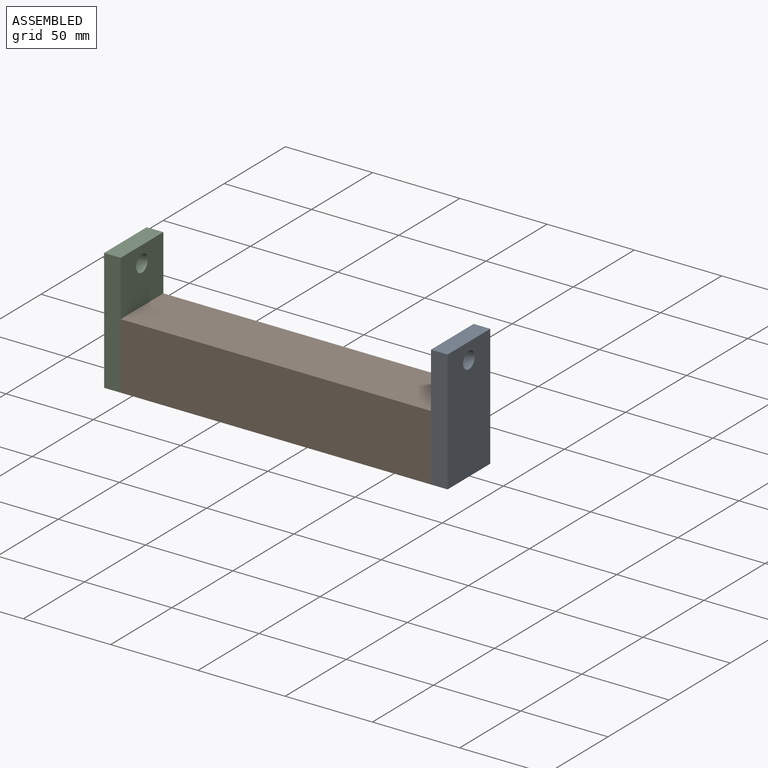
[diagram: assembled view]
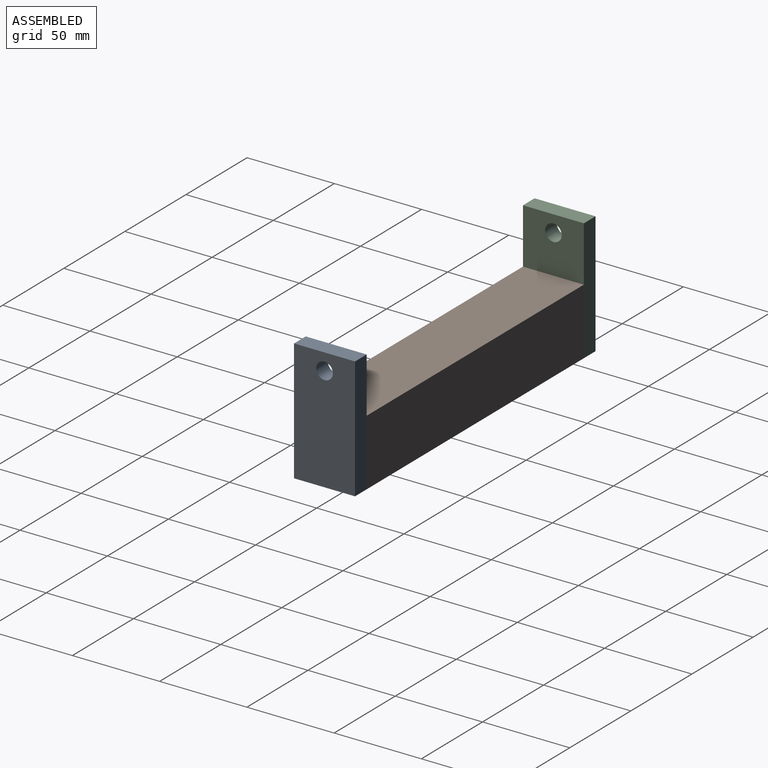
[diagram: assembled view, second angle]
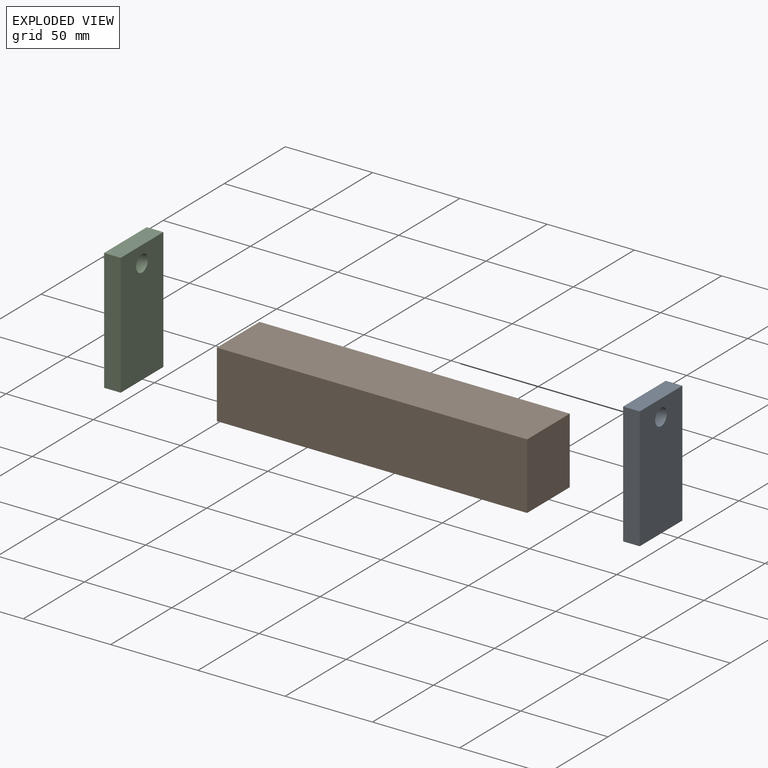
[diagram: exploded view]
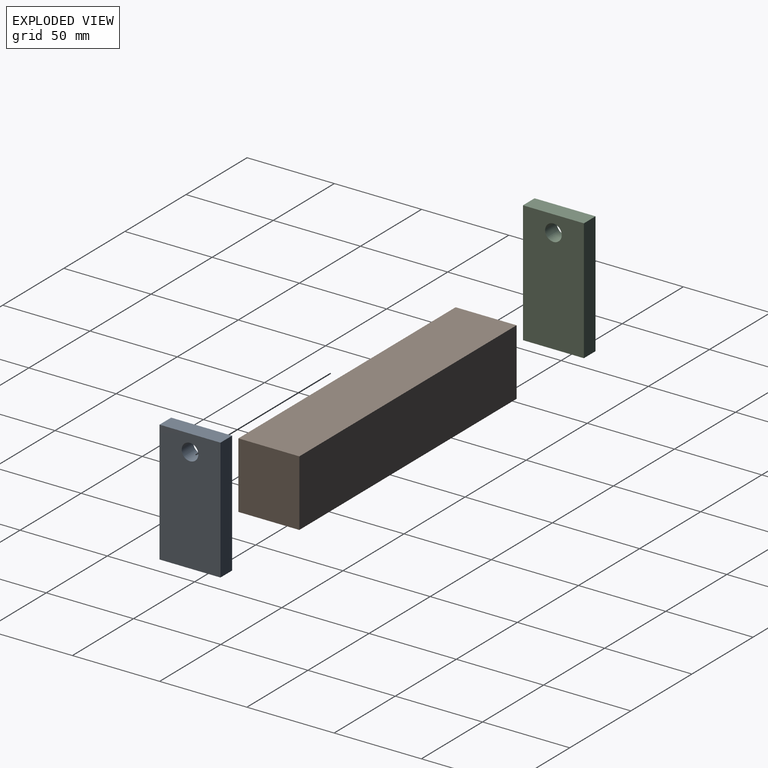
[diagram: exploded view, second angle]
ASSEMBLY  parts=3 mates=2
PART A: 7 faces, bbox 9.5x34.9x69.9 mm
  f0: plane 69.85x9.53mm, normal (0,1,0), area 665.3mm2, adj f1,f3,f5,f6
  f1: plane 34.93x9.53mm, normal (0,0,1), area 332.7mm2, adj f0,f2,f5,f6
  f2: plane 69.85x9.53mm, normal (0,-1,0), area 665.3mm2, adj f1,f3,f5,f6
  f3: plane 34.93x9.53mm, normal (0,0,-1), area 332.7mm2, adj f0,f2,f5,f6
  f4: cylinder r=4.76mm len=9.53mm, axis (-1,0,0), area 285mm2, adj f5,f6
  f5: plane 69.85x34.93mm, normal (1,0,0), area 2368.3mm2, adj f0,f1,f2,f3,f4
  f6: plane 69.85x34.93mm, normal (-1,0,0), area 2368.3mm2, adj f0,f1,f2,f3,f4
PART B: 6 faces, bbox 177.8x34.9x38.1 mm
  f0: plane 38.1x34.93mm, normal (-1,0,0), area 1330.6mm2, adj f1,f3,f4,f5
  f1: plane 177.8x38.1mm, normal (0,-1,0), area 6774.2mm2, adj f0,f2,f3,f4
  f2: plane 38.1x34.93mm, normal (1,0,0), area 1330.6mm2, adj f1,f3,f4,f5
  f3: plane 177.8x34.93mm, normal (0,0,1), area 6209.7mm2, adj f0,f1,f2,f5
  f4: plane 177.8x34.93mm, normal (0,0,-1), area 6209.7mm2, adj f0,f1,f2,f5
  f5: plane 177.8x38.1mm, normal (0,1,0), area 6774.2mm2, adj f0,f2,f3,f4
PART C: 7 faces, bbox 9.5x34.9x69.9 mm
  f0: plane 69.85x9.53mm, normal (0,1,0), area 665.3mm2, adj f1,f3,f5,f6
  f1: plane 34.93x9.53mm, normal (0,0,1), area 332.7mm2, adj f0,f2,f5,f6
  f2: plane 69.85x9.53mm, normal (0,-1,0), area 665.3mm2, adj f1,f3,f5,f6
  f3: plane 34.93x9.53mm, normal (0,0,-1), area 332.7mm2, adj f0,f2,f5,f6
  f4: cylinder r=4.76mm len=9.53mm, axis (1,0,0), area 285mm2, adj f5,f6
  f5: plane 69.85x34.93mm, normal (-1,0,0), area 2368.3mm2, adj f0,f1,f2,f3,f4
  f6: plane 69.85x34.93mm, normal (1,0,0), area 2368.3mm2, adj f0,f1,f2,f3,f4
PLACE A t=(-13.77,-6.27,-9.47)mm
PLACE B t=(-13.77,-6.27,-9.47)mm
PLACE C t=(-13.77,-6.27,-9.47)mm
MATE fastened B.f2 <-> A.f6  axis (1,0,0) through (75.13,-6.27,-50.74)mm
MATE fastened B.f0 <-> C.f6  axis (-1,0,0) through (-102.67,-6.27,-50.74)mm
